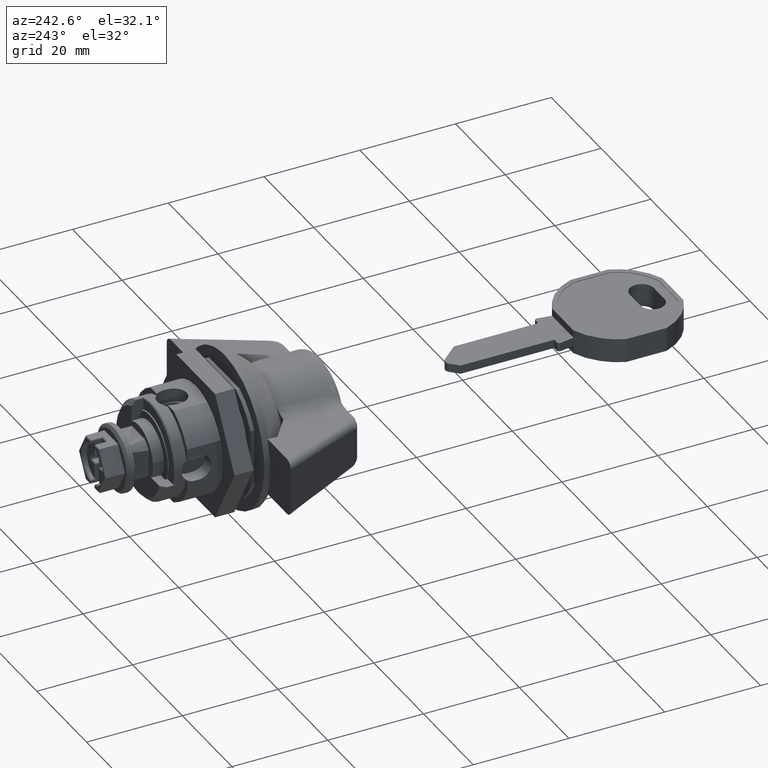
[diagram: clean part render]
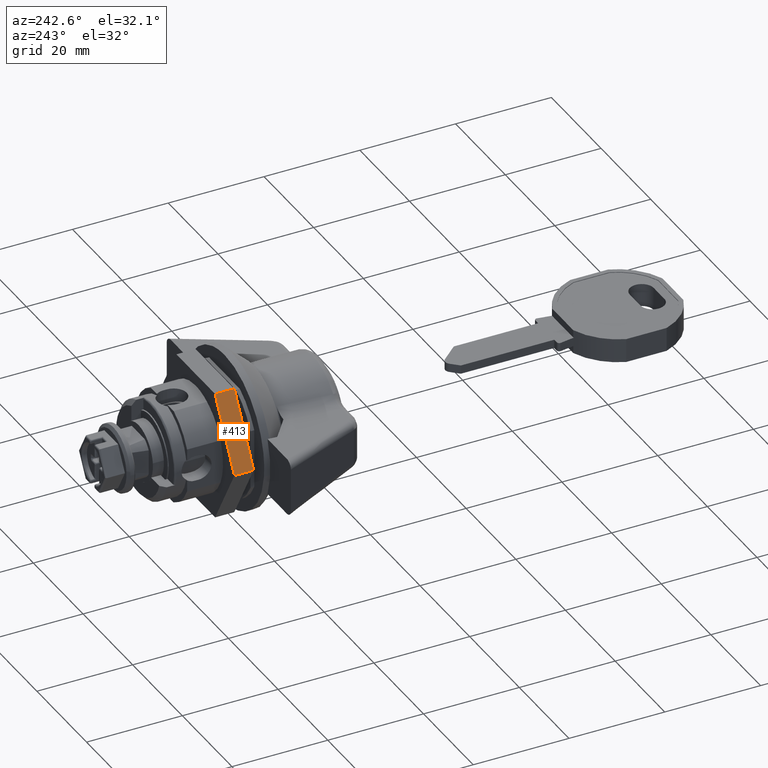
[diagram: same view with one face highlighted and labeled with its STEP entity id]
A machine part, auxiliary view. The second image highlights one B-rep face of the part: STEP entity #413.
In plain terms, the highlighted face is a freeform B-spline surface patch.
Its self-contained STEP definition (entity closure, byte-faithful):
#248=CARTESIAN_POINT('',(2.000000094994905,7.794229004266010,13.500000641215600));
#249=VERTEX_POINT('',#248);
#255=CARTESIAN_POINT('',(2.000000094994905,15.588458008532200,8.526513E-014));
#256=VERTEX_POINT('',#255);
#257=CARTESIAN_POINT('',(2.000000094994905,7.794229004266010,13.500000641215600));
#258=CARTESIAN_POINT('',(2.000000094994905,15.588458008532200,8.526513E-014));
#259=QUASI_UNIFORM_CURVE('',1,(#257,#258),.UNSPECIFIED.,.F.,.U.);
#260=EDGE_CURVE('',#249,#256,#259,.T.);
#318=CARTESIAN_POINT('',(6.000000284984710,15.588458008532200,8.526513E-014));
#319=VERTEX_POINT('',#318);
#325=CARTESIAN_POINT('',(6.000000284984710,7.794229004266010,13.500000641215600));
#326=VERTEX_POINT('',#325);
#327=CARTESIAN_POINT('',(6.000000284984710,7.794229004266010,13.500000641215600));
#328=CARTESIAN_POINT('',(6.000000284984710,15.588458008532200,8.526513E-014));
#329=QUASI_UNIFORM_CURVE('',1,(#327,#328),.UNSPECIFIED.,.F.,.U.);
#330=EDGE_CURVE('',#326,#319,#329,.T.);
#388=CARTESIAN_POINT('',(6.000000284984710,15.588458008532200,8.526513E-014));
#389=CARTESIAN_POINT('',(2.000000094994905,15.588458008532200,8.526513E-014));
#390=QUASI_UNIFORM_CURVE('',1,(#388,#389),.UNSPECIFIED.,.F.,.U.);
#391=EDGE_CURVE('',#319,#256,#390,.T.);
#398=CARTESIAN_POINT('',(1.800199980610272,15.977779805355210,-0.674325132591356));
#399=CARTESIAN_POINT('',(1.800199980610272,7.404907068071322,14.174326015205869));
#400=CARTESIAN_POINT('',(6.199800399369344,15.977779805355210,-0.674325132591356));
#401=CARTESIAN_POINT('',(6.199800399369344,7.404907068071322,14.174326015205869));
#402=B_SPLINE_SURFACE_WITH_KNOTS('',1,1,((#398,#400),(#399,#401)),.UNSPECIFIED.,.F.,.F.,.U.,(2,2),(2,2),(0.0,17.145745474567310),(0.0,4.399600418759071),.UNSPECIFIED.);
#403=ORIENTED_EDGE('',*,*,#260,.F.);
#404=CARTESIAN_POINT('',(6.000000284984710,7.794229004266010,13.500000641215600));
#405=CARTESIAN_POINT('',(2.000000094994905,7.794229004266010,13.500000641215600));
#406=QUASI_UNIFORM_CURVE('',1,(#404,#405),.UNSPECIFIED.,.F.,.U.);
#407=EDGE_CURVE('',#326,#249,#406,.T.);
#408=ORIENTED_EDGE('',*,*,#407,.F.);
#409=ORIENTED_EDGE('',*,*,#330,.T.);
#410=ORIENTED_EDGE('',*,*,#391,.T.);
#411=EDGE_LOOP('',(#403,#408,#409,#410));
#412=FACE_OUTER_BOUND('',#411,.T.);
#413=ADVANCED_FACE('',(#412),#402,.T.);